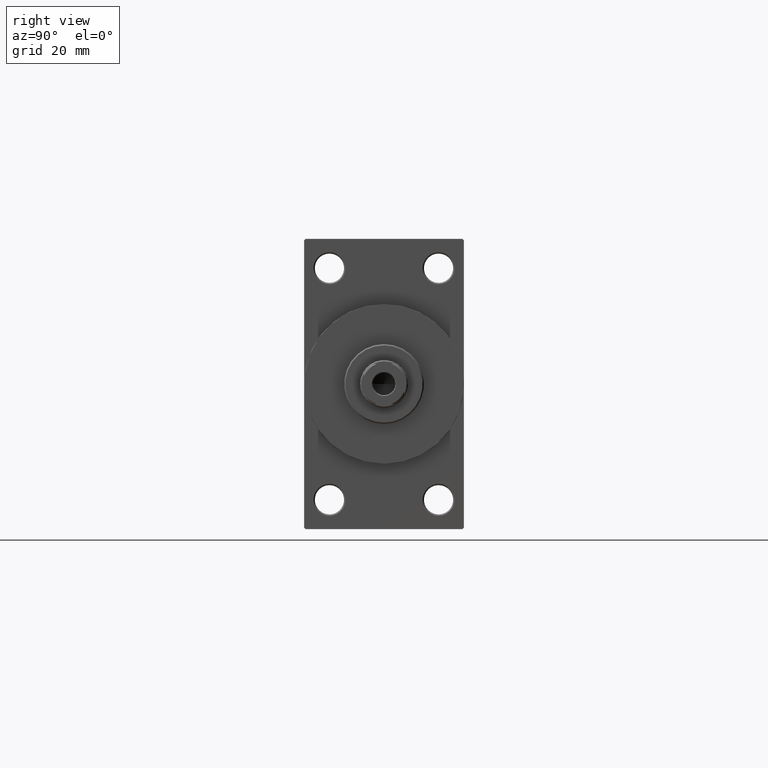
[diagram: clean part render]
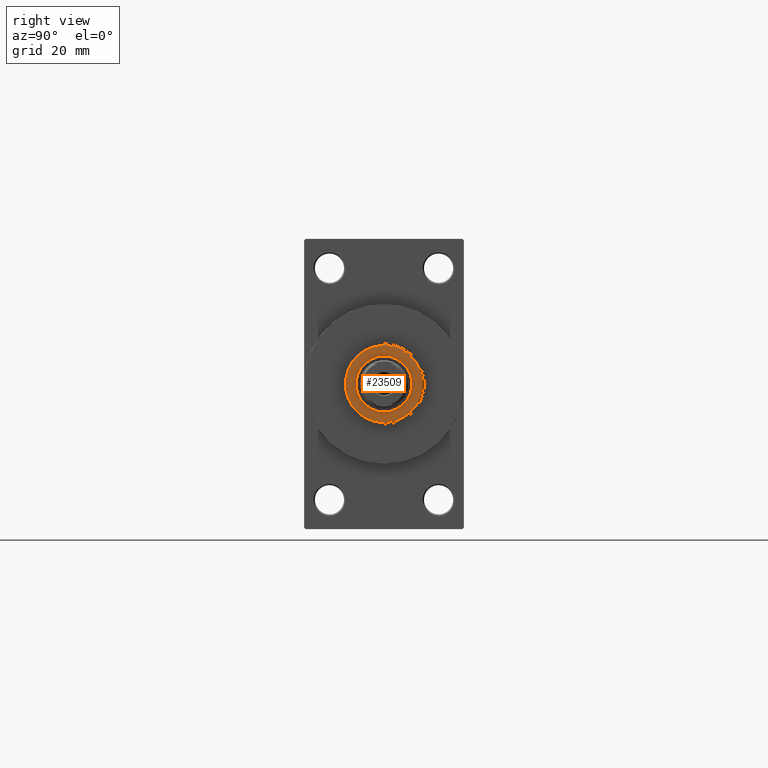
[diagram: same view with one face highlighted and labeled with its STEP entity id]
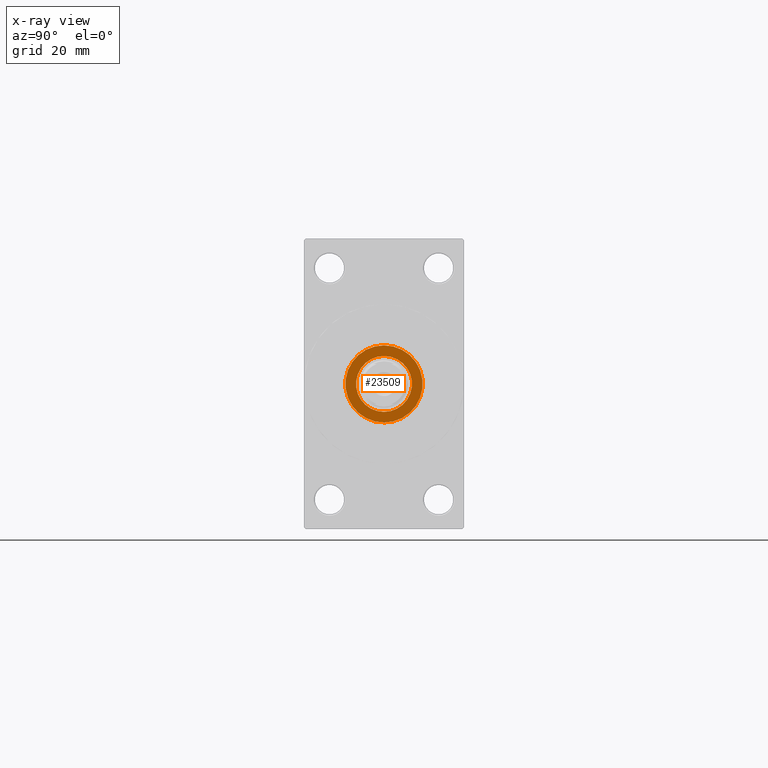
[diagram: x-ray of the same camera — body ghosted, the highlighted face saturated]
A machine part, right view. The second image highlights one B-rep face of the part: STEP entity #23509.
The next image is the same camera in x-ray: the body ghosted, the highlighted face saturated — about 0% of this face is hidden behind the body in this view.
In plain terms, the highlighted planar face has unit normal (1, -0, -0).
Its self-contained STEP definition (entity closure, byte-faithful):
#1603 = DIRECTION ( 'NONE',  ( 0.000000000000000000, 0.000000000000000000, 1.000000000000000000 ) ) ;
#2315 = CARTESIAN_POINT ( 'NONE',  ( 0.000000000000000000, 0.000000000000000000, 51.25999999999999801 ) ) ;
#2644 = DIRECTION ( 'NONE',  ( 0.000000000000000000, 0.000000000000000000, 1.000000000000000000 ) ) ;
#3143 = CARTESIAN_POINT ( 'NONE',  ( 0.000000000000000000, 0.000000000000000000, 51.25999999999999801 ) ) ;
#4716 = AXIS2_PLACEMENT_3D ( 'NONE', #30121, #41345, #15334 ) ;
#5660 = FACE_OUTER_BOUND ( 'NONE', #23750, .T. ) ;
#7960 = CARTESIAN_POINT ( 'NONE',  ( 10.50000000000000000, 0.000000000000000000, 51.25999999999999801 ) ) ;
#9985 = EDGE_CURVE ( 'NONE', #13646, #45856, #36365, .T. ) ;
#10436 = AXIS2_PLACEMENT_3D ( 'NONE', #20940, #10648, #25001 ) ;
#10648 = DIRECTION ( 'NONE',  ( 0.000000000000000000, 0.000000000000000000, 1.000000000000000000 ) ) ;
#12607 = CARTESIAN_POINT ( 'NONE',  ( 14.49999999999999112, 1.806354028742345013E-15, 51.25999999999999801 ) ) ;
#13304 = DIRECTION ( 'NONE',  ( 1.000000000000000000, 0.000000000000000000, -0.000000000000000000 ) ) ;
#13646 = VERTEX_POINT ( 'NONE', #31191 ) ;
#13669 = CIRCLE ( 'NONE', #38052, 14.49999999999999112 ) ;
#15218 = EDGE_CURVE ( 'NONE', #45856, #13646, #13669, .T. ) ;
#15334 = DIRECTION ( 'NONE',  ( 1.000000000000000000, 0.000000000000000000, 0.000000000000000000 ) ) ;
#15400 = VERTEX_POINT ( 'NONE', #43954 ) ;
#17213 = DIRECTION ( 'NONE',  ( 1.000000000000000000, 0.000000000000000000, 0.000000000000000000 ) ) ;
#17690 = AXIS2_PLACEMENT_3D ( 'NONE', #46098, #2644, #17213 ) ;
#20235 = PLANE ( 'NONE',  #42802 ) ;
#20724 = CIRCLE ( 'NONE', #17690, 10.50000000000000000 ) ;
#20940 = CARTESIAN_POINT ( 'NONE',  ( 0.000000000000000000, 0.000000000000000000, 51.25999999999999801 ) ) ;
#23509 = ADVANCED_FACE ( 'NONE', ( #35039, #5660 ), #20235, .T. ) ;
#23750 = EDGE_LOOP ( 'NONE', ( #30261, #45529 ) ) ;
#25001 = DIRECTION ( 'NONE',  ( 1.000000000000000000, 0.000000000000000000, 0.000000000000000000 ) ) ;
#28911 = DIRECTION ( 'NONE',  ( 1.000000000000000000, 0.000000000000000000, 0.000000000000000000 ) ) ;
#29121 = CIRCLE ( 'NONE', #4716, 10.50000000000000000 ) ;
#30121 = CARTESIAN_POINT ( 'NONE',  ( 0.000000000000000000, 0.000000000000000000, 51.25999999999999801 ) ) ;
#30261 = ORIENTED_EDGE ( 'NONE', *, *, #9985, .T. ) ;
#30758 = EDGE_CURVE ( 'NONE', #15400, #36603, #20724, .T. ) ;
#31191 = CARTESIAN_POINT ( 'NONE',  ( -14.49999999999999112, 0.000000000000000000, 51.25999999999999801 ) ) ;
#31491 = EDGE_CURVE ( 'NONE', #36603, #15400, #29121, .T. ) ;
#35039 = FACE_BOUND ( 'NONE', #36167, .T. ) ;
#36167 = EDGE_LOOP ( 'NONE', ( #36665, #46574 ) ) ;
#36365 = CIRCLE ( 'NONE', #10436, 14.49999999999999112 ) ;
#36603 = VERTEX_POINT ( 'NONE', #7960 ) ;
#36665 = ORIENTED_EDGE ( 'NONE', *, *, #31491, .F. ) ;
#38052 = AXIS2_PLACEMENT_3D ( 'NONE', #3143, #43015, #28911 ) ;
#41345 = DIRECTION ( 'NONE',  ( 0.000000000000000000, 0.000000000000000000, 1.000000000000000000 ) ) ;
#42802 = AXIS2_PLACEMENT_3D ( 'NONE', #2315, #1603, #13304 ) ;
#43015 = DIRECTION ( 'NONE',  ( 0.000000000000000000, 0.000000000000000000, 1.000000000000000000 ) ) ;
#43954 = CARTESIAN_POINT ( 'NONE',  ( -10.50000000000000000, 1.285879139104720831E-15, 51.25999999999999801 ) ) ;
#45529 = ORIENTED_EDGE ( 'NONE', *, *, #15218, .T. ) ;
#45856 = VERTEX_POINT ( 'NONE', #12607 ) ;
#46098 = CARTESIAN_POINT ( 'NONE',  ( 0.000000000000000000, 0.000000000000000000, 51.25999999999999801 ) ) ;
#46574 = ORIENTED_EDGE ( 'NONE', *, *, #30758, .F. ) ;